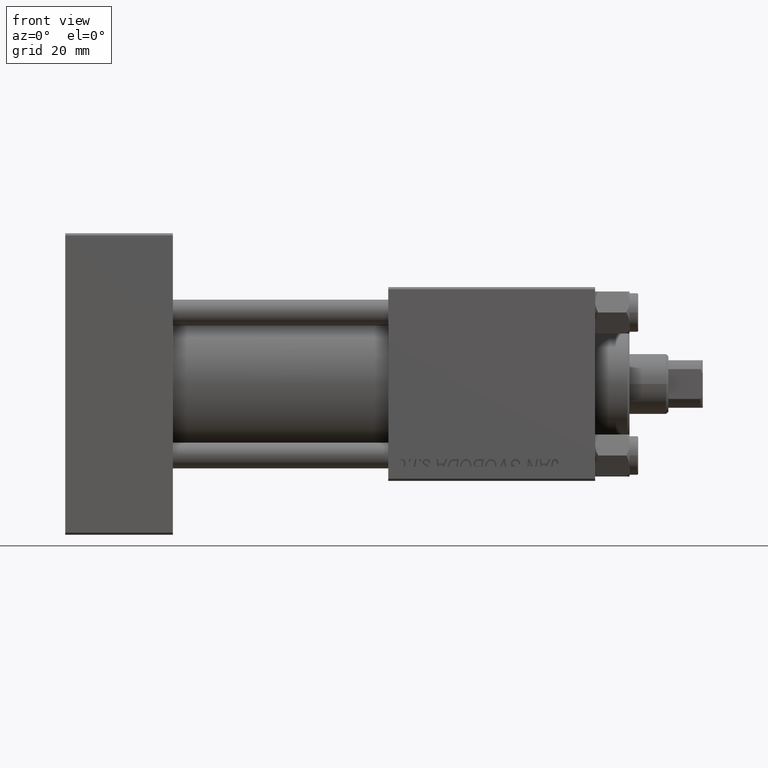
[diagram: clean part render]
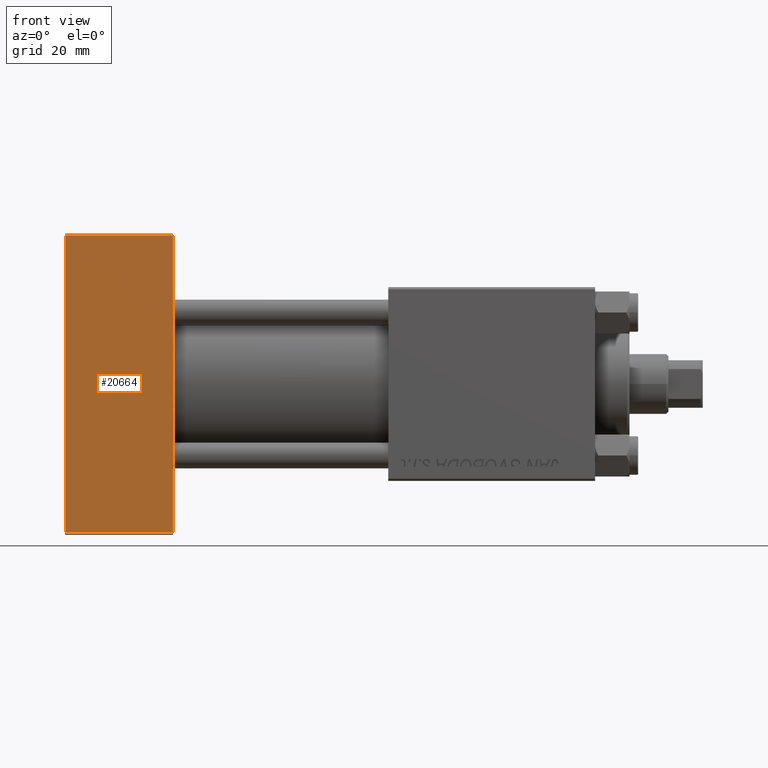
[diagram: same view with one face highlighted and labeled with its STEP entity id]
A machine part, front view. The second image highlights one B-rep face of the part: STEP entity #20664.
In plain terms, the highlighted planar face has unit normal (0, 1, 0).
Its self-contained STEP definition (entity closure, byte-faithful):
#818 = DIRECTION ( 'NONE',  ( 0.000000000000000000, -0.000000000000000000, 1.000000000000000000 ) ) ;
#4033 = EDGE_CURVE ( 'NONE', #31510, #14416, #16256, .T. ) ;
#9774 = ORIENTED_EDGE ( 'NONE', *, *, #10494, .T. ) ;
#10494 = EDGE_CURVE ( 'NONE', #31510, #20565, #39810, .T. ) ;
#12419 = FACE_OUTER_BOUND ( 'NONE', #30755, .T. ) ;
#14416 = VERTEX_POINT ( 'NONE', #48483 ) ;
#15393 = ORIENTED_EDGE ( 'NONE', *, *, #18891, .T. ) ;
#16256 = LINE ( 'NONE', #27865, #37412 ) ;
#16644 = CARTESIAN_POINT ( 'NONE',  ( 0.000000000000000000, -22.49999999999999645, -34.50000000000000000 ) ) ;
#17665 = DIRECTION ( 'NONE',  ( 0.000000000000000000, 0.000000000000000000, -1.000000000000000000 ) ) ;
#18479 = VERTEX_POINT ( 'NONE', #16644 ) ;
#18550 = DIRECTION ( 'NONE',  ( 1.000000000000000000, 0.000000000000000000, 0.000000000000000000 ) ) ;
#18891 = EDGE_CURVE ( 'NONE', #18479, #14416, #41310, .T. ) ;
#19162 = ORIENTED_EDGE ( 'NONE', *, *, #4033, .F. ) ;
#20565 = VERTEX_POINT ( 'NONE', #28415 ) ;
#20664 = ADVANCED_FACE ( 'NONE', ( #12419 ), #31608, .F. ) ;
#27265 = VECTOR ( 'NONE', #18550, 1000.000000000000000 ) ;
#27865 = CARTESIAN_POINT ( 'NONE',  ( 25.00000000000000000, -22.49999999999999645, 35.00000000000000000 ) ) ;
#28178 = DIRECTION ( 'NONE',  ( -1.000000000000000000, 0.000000000000000000, 0.000000000000000000 ) ) ;
#28415 = CARTESIAN_POINT ( 'NONE',  ( 0.000000000000000000, -22.49999999999999645, 34.50000000000000000 ) ) ;
#30755 = EDGE_LOOP ( 'NONE', ( #42642, #15393, #19162, #9774 ) ) ;
#31510 = VERTEX_POINT ( 'NONE', #33234 ) ;
#31608 = PLANE ( 'NONE',  #34626 ) ;
#32104 = CARTESIAN_POINT ( 'NONE',  ( 0.000000000000000000, -22.49999999999999645, 35.00000000000000000 ) ) ;
#32866 = EDGE_CURVE ( 'NONE', #20565, #18479, #47787, .T. ) ;
#33234 = CARTESIAN_POINT ( 'NONE',  ( 25.00000000000000000, -22.49999999999999645, 34.50000000000000000 ) ) ;
#34174 = DIRECTION ( 'NONE',  ( -0.000000000000000000, 1.000000000000000000, 0.000000000000000000 ) ) ;
#34626 = AXIS2_PLACEMENT_3D ( 'NONE', #35409, #34174, #818 ) ;
#35409 = CARTESIAN_POINT ( 'NONE',  ( 25.00000000000000000, -22.49999999999999645, 35.00000000000000000 ) ) ;
#35763 = CARTESIAN_POINT ( 'NONE',  ( 25.00000000000000000, -22.49999999999999645, 34.50000000000000000 ) ) ;
#37412 = VECTOR ( 'NONE', #43309, 1000.000000000000000 ) ;
#39167 = VECTOR ( 'NONE', #17665, 1000.000000000000000 ) ;
#39810 = LINE ( 'NONE', #35763, #49651 ) ;
#41310 = LINE ( 'NONE', #41815, #27265 ) ;
#41815 = CARTESIAN_POINT ( 'NONE',  ( 25.00000000000000000, -22.49999999999999645, -34.50000000000000000 ) ) ;
#42642 = ORIENTED_EDGE ( 'NONE', *, *, #32866, .T. ) ;
#43309 = DIRECTION ( 'NONE',  ( 0.000000000000000000, 0.000000000000000000, -1.000000000000000000 ) ) ;
#47787 = LINE ( 'NONE', #32104, #39167 ) ;
#48483 = CARTESIAN_POINT ( 'NONE',  ( 25.00000000000000000, -22.49999999999999645, -34.50000000000000000 ) ) ;
#49651 = VECTOR ( 'NONE', #28178, 1000.000000000000000 ) ;